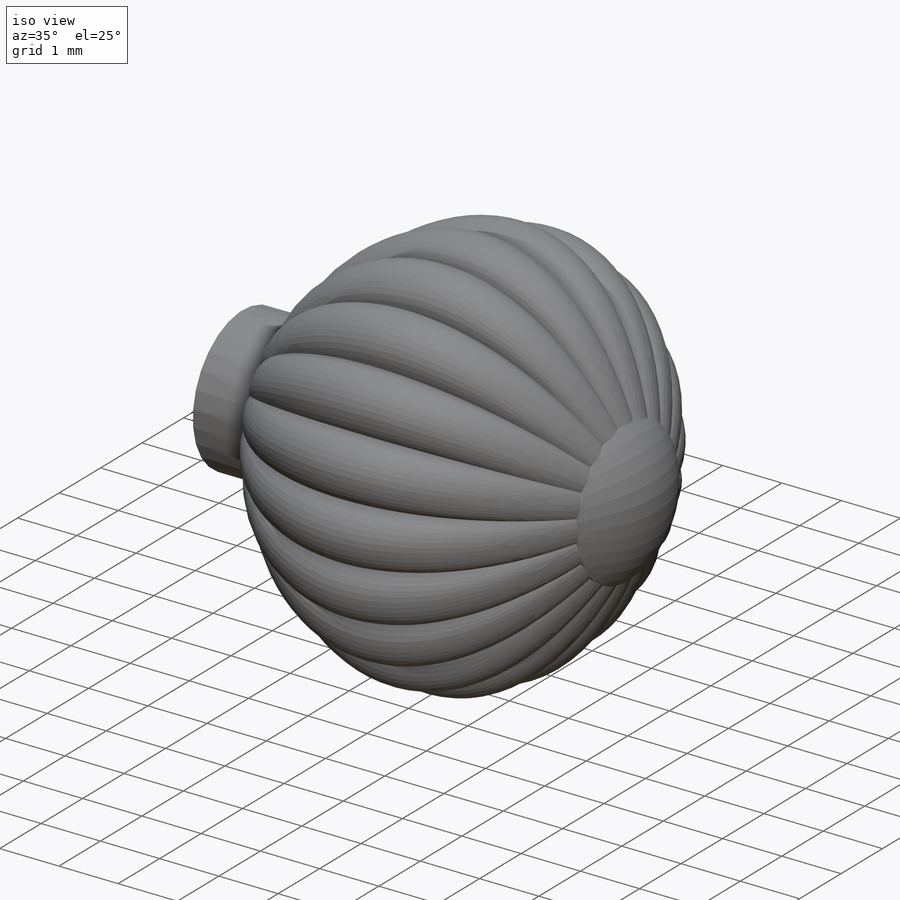
[diagram: iso view]
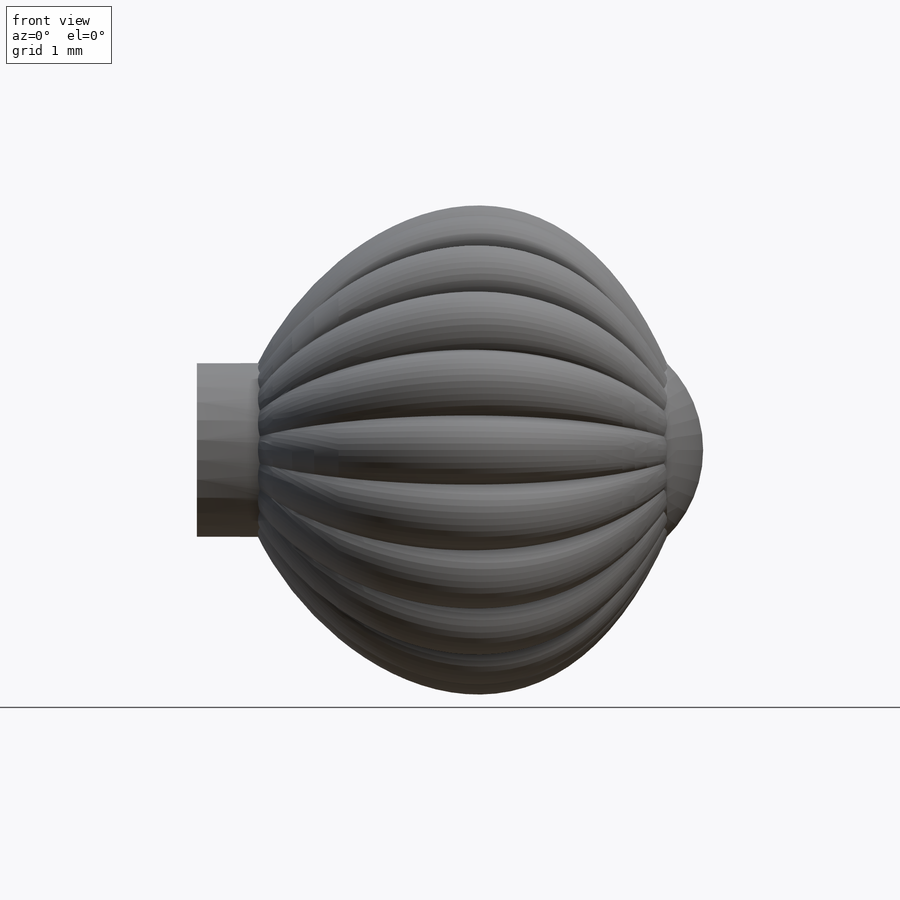
[diagram: front view]
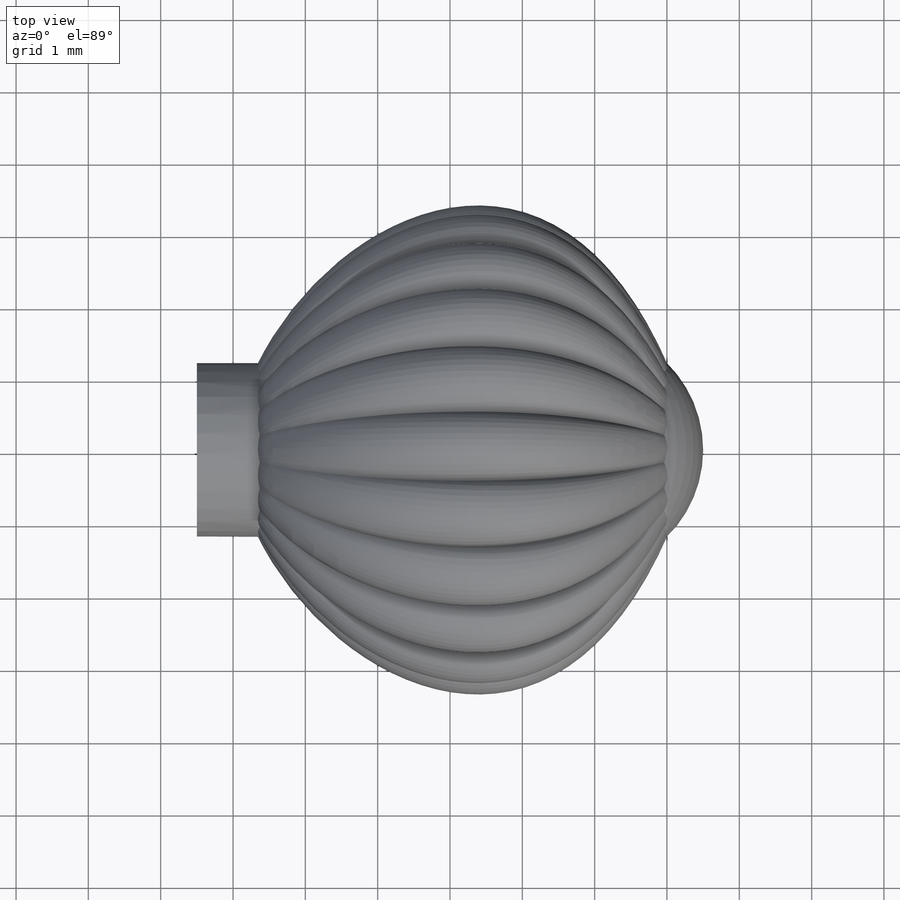
[diagram: top view]
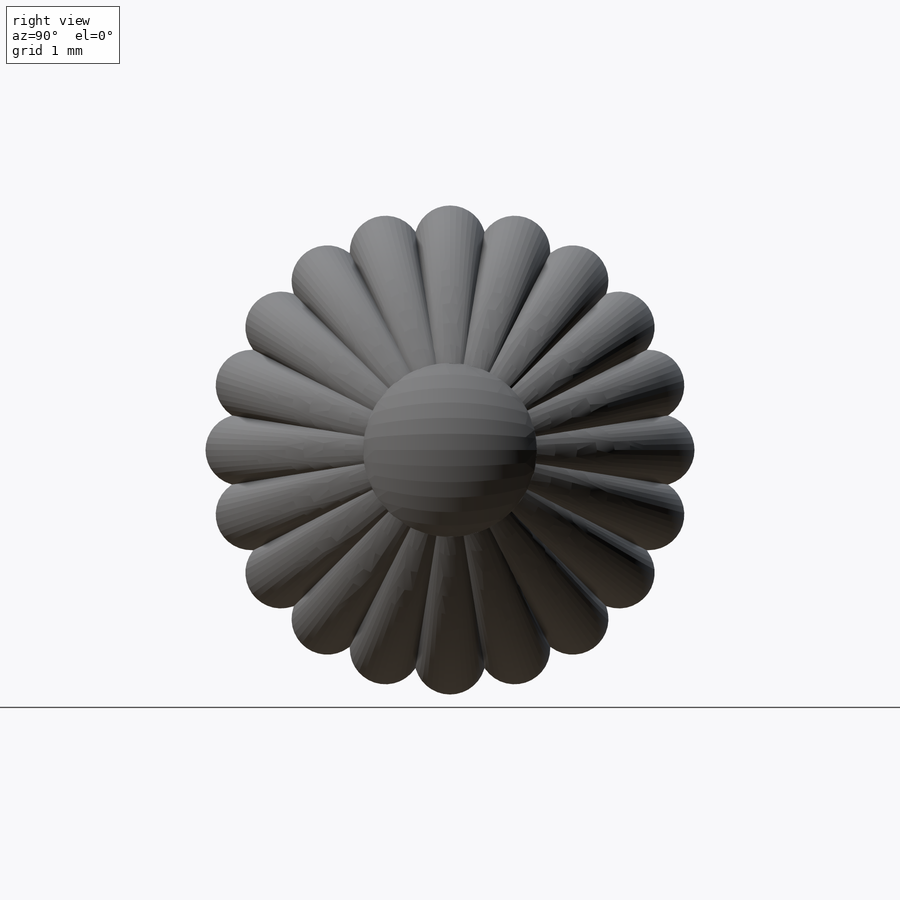
[diagram: right view]
SOLIDWORKS PART (.sldprt)
format: sldprt  version: not decoded by parser v0  size: 809,472 bytes
history: native  units: mm
features: sketch x6, plane x2, material x1, pattern_circular x1, extrude x1, dome x1 (+11 scaffold rows collapsed)
feature tree (23):
  scaffold x11  (default folders/planes/origin — collapsed)
  material  "Material <not specified>"
  sketch  "Sketch3"
  sketch  "Sketch1"  dims[D1=0.3mm]
  plane  "Plane1"  Offset=6mm
  sketch  "Sketch2"  dims[D1=1.0mm D2=0.4mm]
  sketch  "Sketch4"
  plane  "Plane2"  Offset=3mm
  sketch  "Sketch5"  dims[D1=1.0mm D2=~1.83273mm]
  pattern_circular  "CirPattern5"  Count=20 Angle=360deg
  sketch  "Sketch6"
  extrude  "Boss-Extrude2"  Depth=6.5mm
  dome  "Dome1"
decode coverage: 5 of 9 modeling features carry decoded parameters
note: ~ marks probable driven/reference dimensions
note: suppression state not decoded; provenance and decode notes live in map.json
